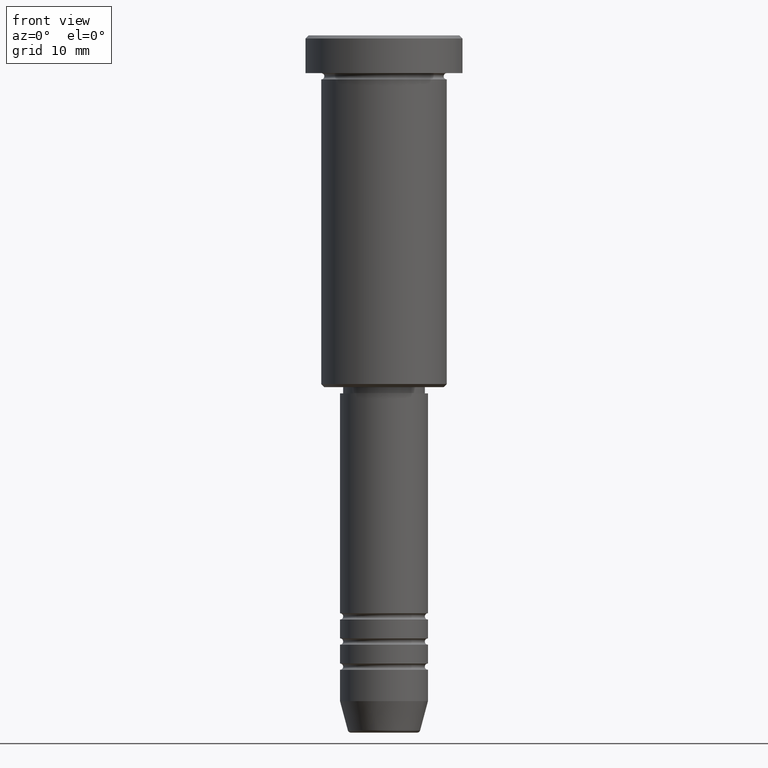
[diagram: clean part render]
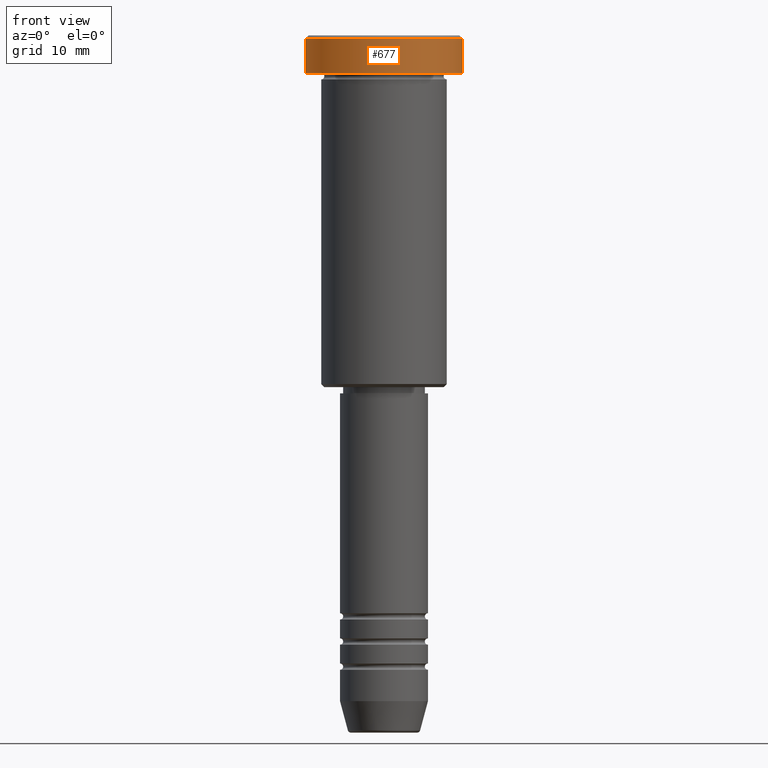
[diagram: same view with one face highlighted and labeled with its STEP entity id]
A machine part, front view. The second image highlights one B-rep face of the part: STEP entity #677.
In plain terms, the highlighted cylindrical surface (partial cylindrical patch) has radius 12.5 mm, axis along (-0, -0, 1).
Its self-contained STEP definition (entity closure, byte-faithful):
#8 = AXIS2_PLACEMENT_3D ( 'NONE', #477, #659, #775 ) ;
#64 = DIRECTION ( 'NONE',  ( -0.000000000000000000, -0.000000000000000000, 1.000000000000000000 ) ) ;
#103 = CIRCLE ( 'NONE', #1160, 12.50000000000000000 ) ;
#141 = EDGE_CURVE ( 'NONE', #1029, #486, #103, .T. ) ;
#143 = CARTESIAN_POINT ( 'NONE',  ( 0.000000000000000000, 0.000000000000000000, -5.999999999999996447 ) ) ;
#152 = FACE_OUTER_BOUND ( 'NONE', #193, .T. ) ;
#193 = EDGE_LOOP ( 'NONE', ( #693, #366, #851, #491 ) ) ;
#247 = EDGE_CURVE ( 'NONE', #1029, #401, #983, .T. ) ;
#248 = CARTESIAN_POINT ( 'NONE',  ( 12.50000000000000000, 0.000000000000000000, -0.5000000000000196509 ) ) ;
#281 = CARTESIAN_POINT ( 'NONE',  ( -12.50000000000000000, 1.530808498934191521E-15, -0.5000000000000196509 ) ) ;
#295 = CARTESIAN_POINT ( 'NONE',  ( 12.50000000000000000, 0.000000000000000000, 0.000000000000000000 ) ) ;
#366 = ORIENTED_EDGE ( 'NONE', *, *, #141, .T. ) ;
#401 = VERTEX_POINT ( 'NONE', #281 ) ;
#477 = CARTESIAN_POINT ( 'NONE',  ( 0.000000000000000000, 0.000000000000000000, -0.5000000000000196509 ) ) ;
#486 = VERTEX_POINT ( 'NONE', #1022 ) ;
#491 = ORIENTED_EDGE ( 'NONE', *, *, #968, .T. ) ;
#526 = CARTESIAN_POINT ( 'NONE',  ( 0.000000000000000000, 0.000000000000000000, 0.000000000000000000 ) ) ;
#546 = CARTESIAN_POINT ( 'NONE',  ( -12.50000000000000000, 1.530808498934191521E-15, 0.000000000000000000 ) ) ;
#583 = DIRECTION ( 'NONE',  ( -0.000000000000000000, -0.000000000000000000, 1.000000000000000000 ) ) ;
#619 = CYLINDRICAL_SURFACE ( 'NONE', #666, 12.50000000000000000 ) ;
#659 = DIRECTION ( 'NONE',  ( 0.000000000000000000, 0.000000000000000000, -1.000000000000000000 ) ) ;
#666 = AXIS2_PLACEMENT_3D ( 'NONE', #526, #64, #1159 ) ;
#677 = ADVANCED_FACE ( 'NONE', ( #152 ), #619, .T. ) ;
#693 = ORIENTED_EDGE ( 'NONE', *, *, #247, .F. ) ;
#775 = DIRECTION ( 'NONE',  ( 1.000000000000000000, 0.000000000000000000, 0.000000000000000000 ) ) ;
#805 = VECTOR ( 'NONE', #1168, 1000.000000000000000 ) ;
#820 = VECTOR ( 'NONE', #583, 1000.000000000000000 ) ;
#845 = LINE ( 'NONE', #295, #820 ) ;
#851 = ORIENTED_EDGE ( 'NONE', *, *, #975, .T. ) ;
#957 = DIRECTION ( 'NONE',  ( -0.000000000000000000, -0.000000000000000000, 1.000000000000000000 ) ) ;
#962 = DIRECTION ( 'NONE',  ( 1.000000000000000000, 0.000000000000000000, 0.000000000000000000 ) ) ;
#968 = EDGE_CURVE ( 'NONE', #1154, #401, #1042, .T. ) ;
#975 = EDGE_CURVE ( 'NONE', #486, #1154, #845, .T. ) ;
#983 = LINE ( 'NONE', #546, #805 ) ;
#1022 = CARTESIAN_POINT ( 'NONE',  ( 12.50000000000000000, 0.000000000000000000, -5.999999999999996447 ) ) ;
#1024 = CARTESIAN_POINT ( 'NONE',  ( -12.50000000000000000, 1.530808498934191521E-15, -5.999999999999996447 ) ) ;
#1029 = VERTEX_POINT ( 'NONE', #1024 ) ;
#1042 = CIRCLE ( 'NONE', #8, 12.50000000000000000 ) ;
#1154 = VERTEX_POINT ( 'NONE', #248 ) ;
#1159 = DIRECTION ( 'NONE',  ( 1.000000000000000000, 0.000000000000000000, 0.000000000000000000 ) ) ;
#1160 = AXIS2_PLACEMENT_3D ( 'NONE', #143, #957, #962 ) ;
#1168 = DIRECTION ( 'NONE',  ( -0.000000000000000000, -0.000000000000000000, 1.000000000000000000 ) ) ;